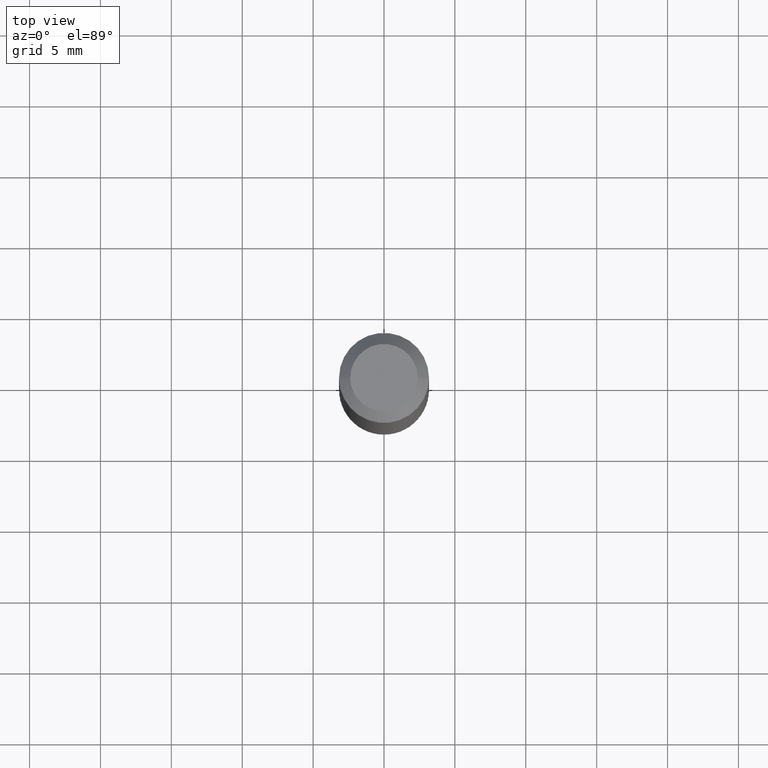
[diagram: clean part render]
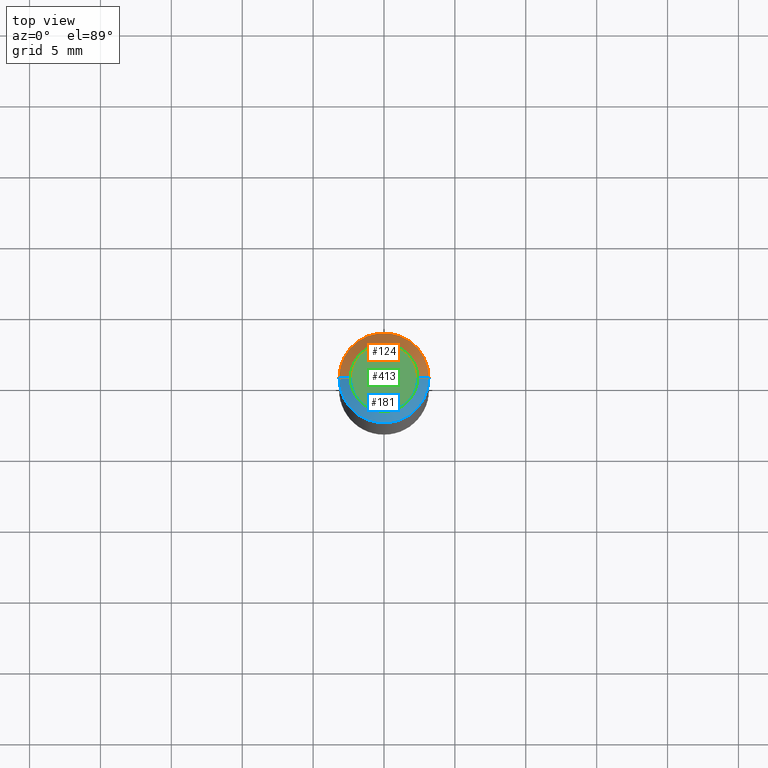
[diagram: same view with three faces highlighted in distinct colors, each labeled with its STEP entity id]
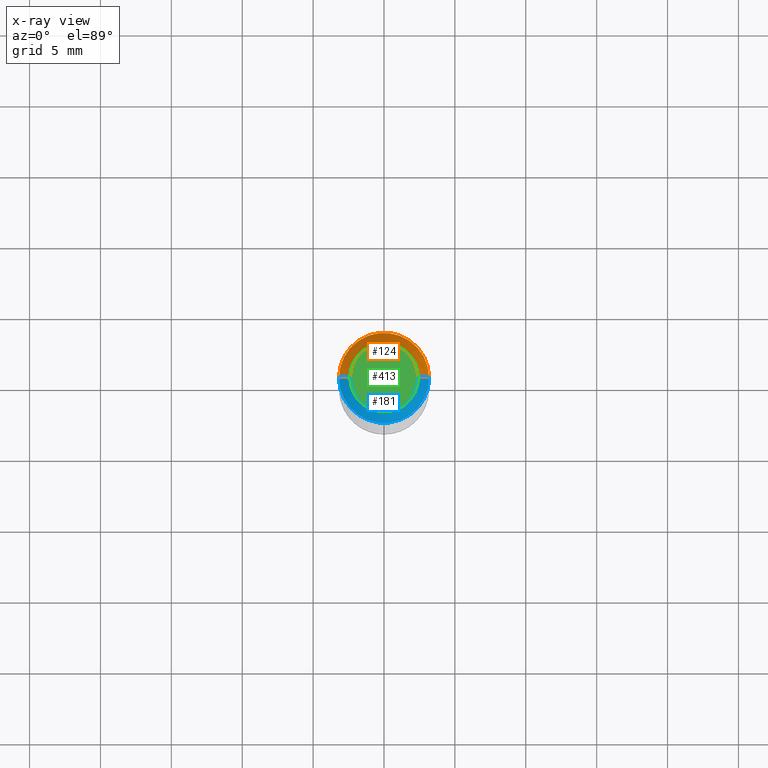
[diagram: x-ray of the same camera — body ghosted, the three highlighted faces saturated]
A machine part, top view with three faces highlighted in distinct colors.
The next image is the same camera in x-ray (body ghosted, the three faces saturated) — at least one of them is partly hidden behind the body in this view.
Their STEP definitions:

[orange] entity #124 — the highlighted conical surface has half-angle 45 deg.
#26 = LINE ( 'NONE', #118, #170 ) ;
#29 = ORIENTED_EDGE ( 'NONE', *, *, #132, .F. ) ;
#30 = CARTESIAN_POINT ( 'NONE',  ( -9.358861080966640236E-47, 1.336197326842803670E-32, 3.827021247335477232E-18 ) ) ;
#37 = CARTESIAN_POINT ( 'NONE',  ( 0.1250000000000000278, -9.819791265496326367E-16, -0.03125000000000022898 ) ) ;
#45 = CONICAL_SURFACE ( 'NONE', #382, 0.1250000000000000278, 0.7853981633974450594 ) ;
#50 = DIRECTION ( 'NONE',  ( 0.7071067811865452413, -7.319954787623248157E-15, -0.7071067811865497932 ) ) ;
#53 = AXIS2_PLACEMENT_3D ( 'NONE', #30, #370, #405 ) ;
#89 = DIRECTION ( 'NONE',  ( -1.000000000000000000, 6.982962677686265922E-15, 0.000000000000000000 ) ) ;
#90 = CARTESIAN_POINT ( 'NONE',  ( -0.09374999999999998612, 7.092071469525108711E-16, 3.827021247330707859E-18 ) ) ;
#94 = EDGE_LOOP ( 'NONE', ( #241, #199, #373, #29 ) ) ;
#113 = CARTESIAN_POINT ( 'NONE',  ( 7.642090019328607041E-31, -1.091087918388490883E-16, -0.03125000000000022898 ) ) ;
#118 = CARTESIAN_POINT ( 'NONE',  ( -0.1250000000000000278, 7.637615428719344354E-16, -0.03125000000000022898 ) ) ;
#124 = ADVANCED_FACE ( 'NONE', ( #369 ), #45, .T. ) ;
#132 = EDGE_CURVE ( 'NONE', #179, #224, #26, .T. ) ;
#142 = EDGE_CURVE ( 'NONE', #193, #300, #268, .T. ) ;
#170 = VECTOR ( 'NONE', #243, 39.37007874015748143 ) ;
#179 = VERTEX_POINT ( 'NONE', #90 ) ;
#188 = CARTESIAN_POINT ( 'NONE',  ( 0.1250000000000000278, -9.666710415602907432E-16, -0.03125000000000022898 ) ) ;
#193 = VERTEX_POINT ( 'NONE', #341 ) ;
#199 = ORIENTED_EDGE ( 'NONE', *, *, #142, .T. ) ;
#208 = DIRECTION ( 'NONE',  ( 2.445468806185136597E-29, -3.491481338843145583E-15, -1.000000000000000000 ) ) ;
#224 = VERTEX_POINT ( 'NONE', #344 ) ;
#230 = CIRCLE ( 'NONE', #316, 0.1250000000000000278 ) ;
#241 = ORIENTED_EDGE ( 'NONE', *, *, #251, .F. ) ;
#243 = DIRECTION ( 'NONE',  ( -0.7071067811865452413, 2.468850131082233000E-15, -0.7071067811865497932 ) ) ;
#251 = EDGE_CURVE ( 'NONE', #193, #179, #290, .T. ) ;
#268 = LINE ( 'NONE', #188, #388 ) ;
#285 = DIRECTION ( 'NONE',  ( -2.445468806185136597E-29, 3.491481338843145583E-15, 1.000000000000000000 ) ) ;
#290 = CIRCLE ( 'NONE', #53, 0.09374999999999998612 ) ;
#300 = VERTEX_POINT ( 'NONE', #37 ) ;
#316 = AXIS2_PLACEMENT_3D ( 'NONE', #326, #285, #352 ) ;
#326 = CARTESIAN_POINT ( 'NONE',  ( 7.642090019328607041E-31, -1.091087918388490883E-16, -0.03125000000000022898 ) ) ;
#341 = CARTESIAN_POINT ( 'NONE',  ( 0.09374999999999998612, -8.049213644256858150E-16, 3.827021247340580176E-18 ) ) ;
#344 = CARTESIAN_POINT ( 'NONE',  ( -0.1250000000000000278, -2.506507196438174969E-15, -0.03125000000000022898 ) ) ;
#352 = DIRECTION ( 'NONE',  ( 1.000000000000000000, -6.982962677686265922E-15, 0.000000000000000000 ) ) ;
#369 = FACE_OUTER_BOUND ( 'NONE', #94, .T. ) ;
#370 = DIRECTION ( 'NONE',  ( -2.445468806185136597E-29, 3.491481338843145583E-15, 1.000000000000000000 ) ) ;
#373 = ORIENTED_EDGE ( 'NONE', *, *, #381, .T. ) ;
#381 = EDGE_CURVE ( 'NONE', #300, #224, #230, .T. ) ;
#382 = AXIS2_PLACEMENT_3D ( 'NONE', #113, #208, #89 ) ;
#388 = VECTOR ( 'NONE', #50, 39.37007874015748143 ) ;
#405 = DIRECTION ( 'NONE',  ( 1.000000000000000000, -6.982962677686266711E-15, 4.875989565238656407E-29 ) ) ;

[blue] entity #181 — the highlighted conical surface has half-angle 45 deg.
#23 = DIRECTION ( 'NONE',  ( 2.445468806185136597E-29, -3.491481338843145583E-15, -1.000000000000000000 ) ) ;
#26 = LINE ( 'NONE', #118, #170 ) ;
#32 = EDGE_LOOP ( 'NONE', ( #262, #222, #228, #276 ) ) ;
#37 = CARTESIAN_POINT ( 'NONE',  ( 0.1250000000000000278, -9.819791265496326367E-16, -0.03125000000000022898 ) ) ;
#47 = CIRCLE ( 'NONE', #196, 0.1250000000000000278 ) ;
#50 = DIRECTION ( 'NONE',  ( 0.7071067811865452413, -7.319954787623248157E-15, -0.7071067811865497932 ) ) ;
#70 = DIRECTION ( 'NONE',  ( -2.445468806185136597E-29, 3.491481338843145583E-15, 1.000000000000000000 ) ) ;
#90 = CARTESIAN_POINT ( 'NONE',  ( -0.09374999999999998612, 7.092071469525108711E-16, 3.827021247330707859E-18 ) ) ;
#100 = CONICAL_SURFACE ( 'NONE', #406, 0.1250000000000000278, 0.7853981633974450594 ) ;
#118 = CARTESIAN_POINT ( 'NONE',  ( -0.1250000000000000278, 7.637615428719344354E-16, -0.03125000000000022898 ) ) ;
#131 = DIRECTION ( 'NONE',  ( 1.000000000000000000, -6.982962677686266711E-15, 4.875989565238656407E-29 ) ) ;
#132 = EDGE_CURVE ( 'NONE', #179, #224, #26, .T. ) ;
#142 = EDGE_CURVE ( 'NONE', #193, #300, #268, .T. ) ;
#154 = FACE_OUTER_BOUND ( 'NONE', #32, .T. ) ;
#170 = VECTOR ( 'NONE', #243, 39.37007874015748143 ) ;
#179 = VERTEX_POINT ( 'NONE', #90 ) ;
#181 = ADVANCED_FACE ( 'NONE', ( #154 ), #100, .T. ) ;
#188 = CARTESIAN_POINT ( 'NONE',  ( 0.1250000000000000278, -9.666710415602907432E-16, -0.03125000000000022898 ) ) ;
#193 = VERTEX_POINT ( 'NONE', #341 ) ;
#196 = AXIS2_PLACEMENT_3D ( 'NONE', #198, #70, #202 ) ;
#198 = CARTESIAN_POINT ( 'NONE',  ( 7.642090019328607041E-31, -1.091087918388490883E-16, -0.03125000000000022898 ) ) ;
#202 = DIRECTION ( 'NONE',  ( 1.000000000000000000, -6.982962677686265922E-15, 0.000000000000000000 ) ) ;
#210 = CARTESIAN_POINT ( 'NONE',  ( 7.642090019328607041E-31, -1.091087918388490883E-16, -0.03125000000000022898 ) ) ;
#222 = ORIENTED_EDGE ( 'NONE', *, *, #399, .F. ) ;
#224 = VERTEX_POINT ( 'NONE', #344 ) ;
#228 = ORIENTED_EDGE ( 'NONE', *, *, #132, .T. ) ;
#243 = DIRECTION ( 'NONE',  ( -0.7071067811865452413, 2.468850131082233000E-15, -0.7071067811865497932 ) ) ;
#262 = ORIENTED_EDGE ( 'NONE', *, *, #142, .F. ) ;
#266 = AXIS2_PLACEMENT_3D ( 'NONE', #380, #408, #131 ) ;
#268 = LINE ( 'NONE', #188, #388 ) ;
#273 = DIRECTION ( 'NONE',  ( -1.000000000000000000, 6.982962677686265922E-15, 0.000000000000000000 ) ) ;
#276 = ORIENTED_EDGE ( 'NONE', *, *, #348, .T. ) ;
#300 = VERTEX_POINT ( 'NONE', #37 ) ;
#308 = CIRCLE ( 'NONE', #266, 0.09374999999999998612 ) ;
#341 = CARTESIAN_POINT ( 'NONE',  ( 0.09374999999999998612, -8.049213644256858150E-16, 3.827021247340580176E-18 ) ) ;
#344 = CARTESIAN_POINT ( 'NONE',  ( -0.1250000000000000278, -2.506507196438174969E-15, -0.03125000000000022898 ) ) ;
#348 = EDGE_CURVE ( 'NONE', #224, #300, #47, .T. ) ;
#380 = CARTESIAN_POINT ( 'NONE',  ( -9.358861080966640236E-47, 1.336197326842803670E-32, 3.827021247335477232E-18 ) ) ;
#388 = VECTOR ( 'NONE', #50, 39.37007874015748143 ) ;
#399 = EDGE_CURVE ( 'NONE', #179, #193, #308, .T. ) ;
#406 = AXIS2_PLACEMENT_3D ( 'NONE', #210, #23, #273 ) ;
#408 = DIRECTION ( 'NONE',  ( -2.445468806185136597E-29, 3.491481338843145583E-15, 1.000000000000000000 ) ) ;

[green] entity #413 — the highlighted planar face has unit normal (0, -0, -1).
#17 = AXIS2_PLACEMENT_3D ( 'NONE', #168, #171, #226 ) ;
#30 = CARTESIAN_POINT ( 'NONE',  ( -9.358861080966640236E-47, 1.336197326842803670E-32, 3.827021247335477232E-18 ) ) ;
#53 = AXIS2_PLACEMENT_3D ( 'NONE', #30, #370, #405 ) ;
#54 = ORIENTED_EDGE ( 'NONE', *, *, #251, .T. ) ;
#90 = CARTESIAN_POINT ( 'NONE',  ( -0.09374999999999998612, 7.092071469525108711E-16, 3.827021247330707859E-18 ) ) ;
#131 = DIRECTION ( 'NONE',  ( 1.000000000000000000, -6.982962677686266711E-15, 4.875989565238656407E-29 ) ) ;
#168 = CARTESIAN_POINT ( 'NONE',  ( -4.679430540483320118E-47, 6.680986634214018350E-33, 1.913510623667738616E-18 ) ) ;
#171 = DIRECTION ( 'NONE',  ( 2.438088387897960049E-29, -3.491481338843145188E-15, -1.000000000000000000 ) ) ;
#179 = VERTEX_POINT ( 'NONE', #90 ) ;
#193 = VERTEX_POINT ( 'NONE', #341 ) ;
#226 = DIRECTION ( 'NONE',  ( -1.000000000000000000, 6.982962677686265922E-15, -4.876176775795935793E-29 ) ) ;
#250 = EDGE_LOOP ( 'NONE', ( #271, #54 ) ) ;
#251 = EDGE_CURVE ( 'NONE', #193, #179, #290, .T. ) ;
#254 = PLANE ( 'NONE',  #17 ) ;
#266 = AXIS2_PLACEMENT_3D ( 'NONE', #380, #408, #131 ) ;
#271 = ORIENTED_EDGE ( 'NONE', *, *, #399, .T. ) ;
#290 = CIRCLE ( 'NONE', #53, 0.09374999999999998612 ) ;
#308 = CIRCLE ( 'NONE', #266, 0.09374999999999998612 ) ;
#341 = CARTESIAN_POINT ( 'NONE',  ( 0.09374999999999998612, -8.049213644256858150E-16, 3.827021247340580176E-18 ) ) ;
#358 = FACE_OUTER_BOUND ( 'NONE', #250, .T. ) ;
#370 = DIRECTION ( 'NONE',  ( -2.445468806185136597E-29, 3.491481338843145583E-15, 1.000000000000000000 ) ) ;
#380 = CARTESIAN_POINT ( 'NONE',  ( -9.358861080966640236E-47, 1.336197326842803670E-32, 3.827021247335477232E-18 ) ) ;
#399 = EDGE_CURVE ( 'NONE', #179, #193, #308, .T. ) ;
#405 = DIRECTION ( 'NONE',  ( 1.000000000000000000, -6.982962677686266711E-15, 4.875989565238656407E-29 ) ) ;
#408 = DIRECTION ( 'NONE',  ( -2.445468806185136597E-29, 3.491481338843145583E-15, 1.000000000000000000 ) ) ;
#413 = ADVANCED_FACE ( 'NONE', ( #358 ), #254, .F. ) ;